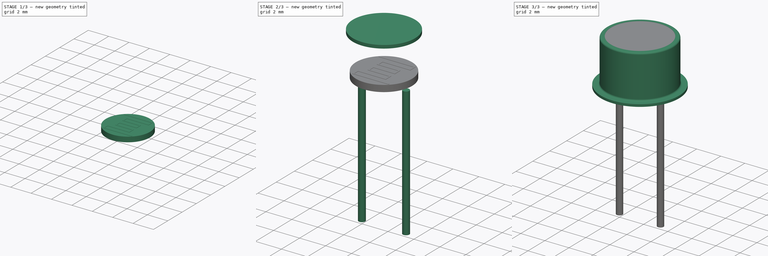
[diagram: build sequence overview — one tinted view per stage of 3, left to right]
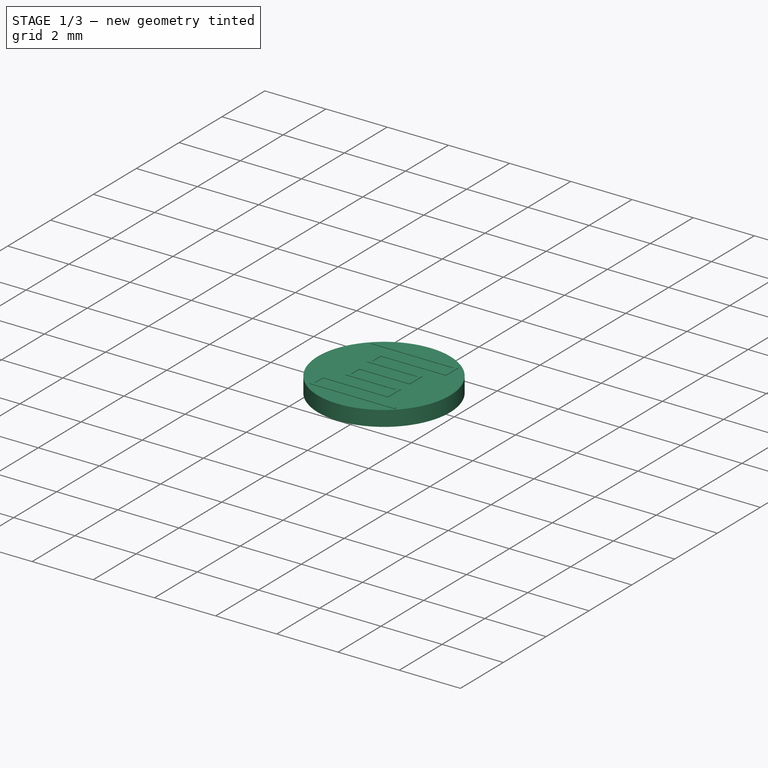
[diagram: stage 1 of 3 — iso view after this stage's code; geometry added in this stage tinted green]
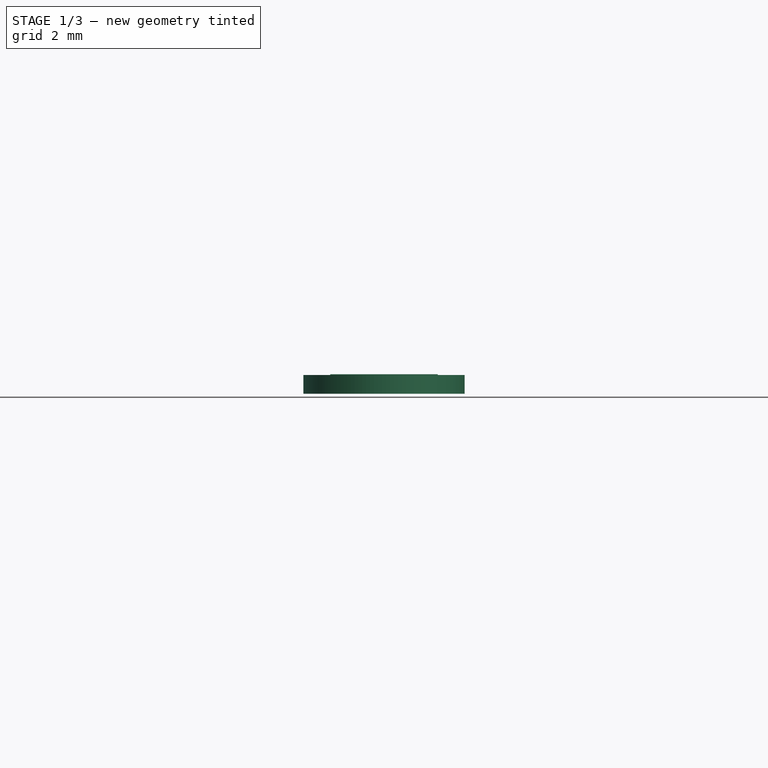
[diagram: stage 1 of 3 — front view after this stage's code; geometry added in this stage tinted green]
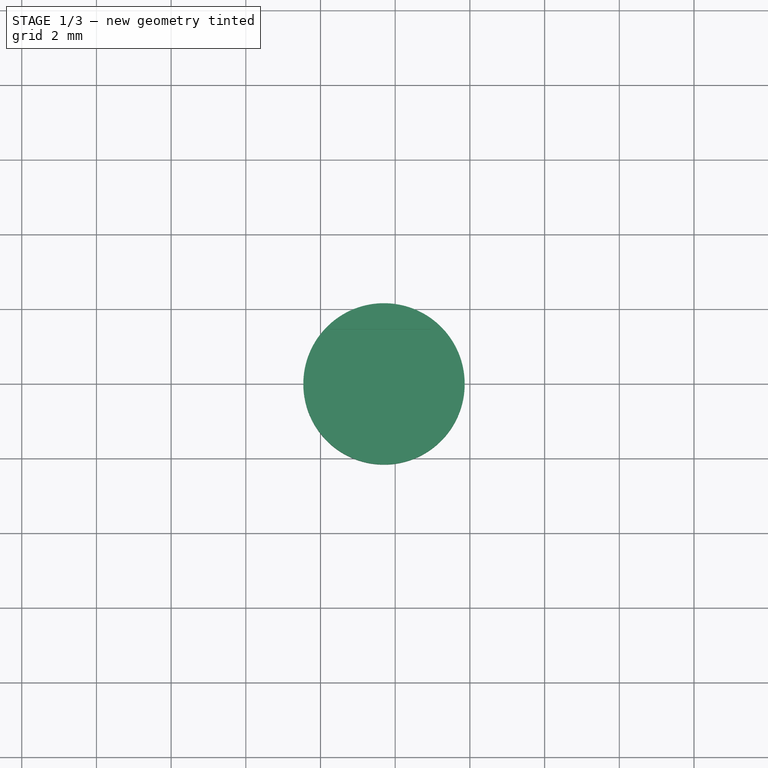
[diagram: stage 1 of 3 — top view after this stage's code; geometry added in this stage tinted green]
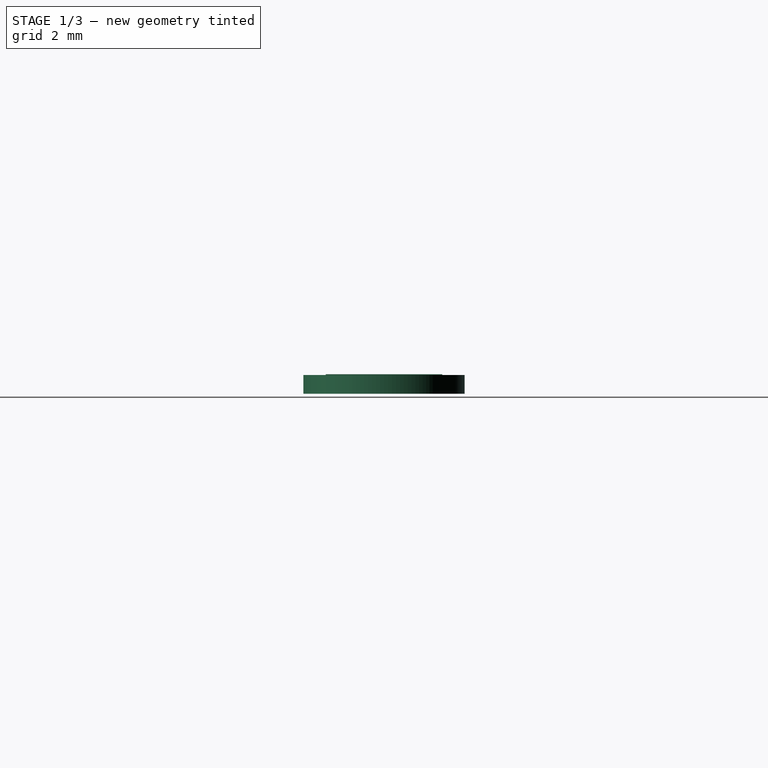
[diagram: stage 1 of 3 — right view after this stage's code; geometry added in this stage tinted green]
FCSTD DOCUMENT  (FreeCAD 0.16R6712 (Git))
Label: R_LDR_D6.4mm_P3.4mm_Vertical
License: All rights reserved
LicenseURL: http://en.wikipedia.org/wiki/All_rights_reserved
objects: Sketcher::SketchObject×5, PartDesign::Pad×3, PartDesign::Revolution×2, Spreadsheet::Sheet×2, Part::MultiFuse×1
note: 16 computed .brp shape members not serialized (recipe doc carries the construction recipe); baked Part::Feature solids carry a one-line shape summary decoded from their .brp

FEATURE [Sketcher::SketchObject] Sketch006
  Placement = pos=(0,0,5.4) rot=(0,0,1;0rad)
  expr: Placement.Base.z = Spreadsheet.pin_upper_length + Spreadsheet.hbottom * 2
  expr: Constraints[2] = Spreadsheet.Dpin / 2
  expr: Constraints[1] = Spreadsheet.DWin / 2 * 0.9
  sketch-geometry (1):
    g0: Circle CenterX=1.7 CenterY=0 CenterZ=0 NormalX=0 NormalY=0 NormalZ=1 Radius=2.16
  constraints (3):
    c: PointOnObject(g0,g-1)
    c: Radius(g0) = 2.16
    c: DistanceX(g-1,g0) = 1.7
FEATURE [PartDesign::Pad] Pad003
  Length = 0.5
  Length2 = 100
  Placement = pos=(0,0,5.4) rot=(0,0,1;0rad)
  Sketch = -> Sketch006
  Type = 0
FEATURE [Sketcher::SketchObject] Sketch002
  Placement = pos=(0,0,5.87) rot=(0,0,1;0rad)
  expr: Constraints[149] = Data.DStructure
  expr: Constraints[186] = Spreadsheet.Dpin / 6
  expr: Constraints[185] = Data.RM * 0.025
  expr: Placement.Base.z = Spreadsheet.pin_upper_length + Spreadsheet.hbottom * 2 + 0.47
  expr: Constraints[8] = Spreadsheet.DWin * 0.65
  expr: Constraints[11] = Spreadsheet.DWin * 0.6
  expr: Constraints[18] = Spreadsheet.Dpin / 2
  expr: Placement.Rotation.Axis.z = Data.Htop
  sketch-geometry (66):
    g0: LineSegment [constr] StartX=0.26 StartY=1.56 StartZ=0 EndX=3.14 EndY=1.56 EndZ=0
    g1: LineSegment [constr] StartX=3.14 StartY=1.56 StartZ=0 EndX=3.14 EndY=-1.56 EndZ=0
    g2: LineSegment [constr] StartX=3.14 StartY=-1.56 StartZ=0 EndX=0.26 EndY=-1.56 EndZ=0
    g3: LineSegment [constr] StartX=0.26 StartY=-1.56 StartZ=0 EndX=0.26 EndY=1.56 EndZ=0
    g4: GeomPoint [constr] X=0.26 Y=0 Z=0
    g5: LineSegment [constr] StartX=0.26 StartY=0 StartZ=0 EndX=3.14 EndY=0 EndZ=0
    g6: LineSegment [constr] StartX=0 StartY=0 StartZ=0 EndX=1.7 EndY=0 EndZ=0
    g7: LineSegment StartX=0.26 StartY=1.46 StartZ=0 EndX=2.955 EndY=1.46 EndZ=0
    g8: LineSegment StartX=3.055 StartY=1.46 StartZ=0 EndX=3.055 EndY=1.56 EndZ=0
    g9: LineSegment StartX=3.055 StartY=1.56 StartZ=0 EndX=0.26 EndY=1.56 EndZ=0
    g10: LineSegment StartX=0.26 StartY=1.56 StartZ=0 EndX=0.26 EndY=1.46 EndZ=0
    g11: LineSegment [constr] StartX=2.955 StartY=1.46 StartZ=0 EndX=3.055 EndY=1.46 EndZ=0
    g12: LineSegment StartX=3.055 StartY=1.46 StartZ=0 EndX=3.055 EndY=0.956667 EndZ=0
    g13: LineSegment StartX=3.055 StartY=0.956667 StartZ=0 EndX=2.955 EndY=0.956667 EndZ=0
    g14: LineSegment StartX=2.955 StartY=1.05667 StartZ=0 EndX=2.955 EndY=1.46 EndZ=0
    g15: LineSegment StartX=2.955 StartY=1.05667 StartZ=0 EndX=0.826667 EndY=1.05667 EndZ=0
    g16: LineSegment StartX=0.826667 StartY=1.05667 StartZ=0 EndX=0.826667 EndY=0.956667 EndZ=0
    g17: LineSegment StartX=0.926667 StartY=0.956667 StartZ=0 EndX=2.955 EndY=0.956667 EndZ=0
    g18: LineSegment [constr] StartX=2.955 StartY=0.956667 StartZ=0 EndX=2.955 EndY=1.05667 EndZ=0
    g19: LineSegment [constr] StartX=0.926667 StartY=0.956667 StartZ=0 EndX=0.826667 EndY=0.956667 EndZ=0
    g20: LineSegment StartX=0.826667 StartY=0.956667 StartZ=0 EndX=0.826667 EndY=0.453333 EndZ=0
    g21: LineSegment StartX=0.826667 StartY=0.453333 StartZ=0 EndX=0.926667 EndY=0.453333 EndZ=0
    g22: LineSegment StartX=0.926667 StartY=0.553333 StartZ=0 EndX=0.926667 EndY=0.956667 EndZ=0
    g23: LineSegment StartX=0.926667 StartY=0.553333 StartZ=0 EndX=2.57333 EndY=0.553333 EndZ=0
    g24: LineSegment StartX=2.57333 StartY=0.553333 StartZ=0 EndX=2.57333 EndY=0.453333 EndZ=0
    g25: LineSegment StartX=2.47333 StartY=0.453333 StartZ=0 EndX=0.926667 EndY=0.453333 EndZ=0
    g26: LineSegment [constr] StartX=0.926667 StartY=0.453333 StartZ=0 EndX=0.926667 EndY=0.553333 EndZ=0
    g27: LineSegment [constr] StartX=2.47333 StartY=0.453333 StartZ=0 EndX=2.57333 EndY=0.453333 EndZ=0
    g28: LineSegment StartX=2.57333 StartY=0.453333 StartZ=0 EndX=2.57333 EndY=-0.05 EndZ=0
    g29: LineSegment StartX=2.57333 StartY=-0.05 StartZ=0 EndX=2.47333 EndY=-0.05 EndZ=0
    g30: LineSegment StartX=2.47333 StartY=0.05 StartZ=0 EndX=0.826667 EndY=0.05 EndZ=0
    g31: LineSegment StartX=0.826667 StartY=0.05 StartZ=0 EndX=0.826667 EndY=-0.05 EndZ=0
    g32: LineSegment StartX=0.926667 StartY=-0.05 StartZ=0 EndX=2.47333 EndY=-0.05 EndZ=0
    g33: LineSegment [constr] StartX=2.47333 StartY=-0.05 StartZ=0 EndX=2.47333 EndY=0.05 EndZ=0
    g34: LineSegment [constr] StartX=0.926667 StartY=-0.05 StartZ=0 EndX=0.826667 EndY=-0.05 EndZ=0
    g35: LineSegment StartX=0.826667 StartY=-0.05 StartZ=0 EndX=0.826667 EndY=-0.553333 EndZ=0
    g36: LineSegment StartX=0.826667 StartY=-0.553333 StartZ=0 EndX=0.926667 EndY=-0.553333 EndZ=0
    g37: LineSegment StartX=0.926667 StartY=-0.453333 StartZ=0 EndX=0.926667 EndY=-0.05 EndZ=0
    g38: LineSegment StartX=0.926667 StartY=-0.453333 StartZ=0 EndX=2.57333 EndY=-0.453333 EndZ=0
    g39: LineSegment StartX=2.57333 StartY=-0.453333 StartZ=0 EndX=2.57333 EndY=-0.553333 EndZ=0
    g40: LineSegment StartX=2.47333 StartY=-0.553333 StartZ=0 EndX=0.926667 EndY=-0.553333 EndZ=0
    g41: LineSegment [constr] StartX=0.926667 StartY=-0.553333 StartZ=0 EndX=0.926667 EndY=-0.453333 EndZ=0
    g42: LineSegment [constr] StartX=2.47333 StartY=-0.553333 StartZ=0 EndX=2.57333 EndY=-0.553333 EndZ=0
    g43: LineSegment StartX=2.57333 StartY=-0.553333 StartZ=0 EndX=2.57333 EndY=-1.05667 EndZ=0
    g44: LineSegment StartX=2.57333 StartY=-1.05667 StartZ=0 EndX=2.47333 EndY=-1.05667 EndZ=0
    g45: LineSegment StartX=2.47333 StartY=-0.956667 StartZ=0 EndX=2.47333 EndY=-0.553333 EndZ=0
    g46: LineSegment StartX=2.47333 StartY=-0.956667 StartZ=0 EndX=0.345 EndY=-0.956667 EndZ=0
    g47: LineSegment StartX=0.345 StartY=-0.956667 StartZ=0 EndX=0.345 EndY=-1.05667 EndZ=0
    g48: LineSegment StartX=0.445 StartY=-1.05667 StartZ=0 EndX=2.47333 EndY=-1.05667 EndZ=0
    g49: LineSegment [constr] StartX=2.47333 StartY=-1.05667 StartZ=0 EndX=2.47333 EndY=-0.956667 EndZ=0
    g50: LineSegment [constr] StartX=0.445 StartY=-1.05667 StartZ=0 EndX=0.345 EndY=-1.05667 EndZ=0
    g51: LineSegment StartX=0.345 StartY=-1.05667 StartZ=0 EndX=0.345 EndY=-1.56 EndZ=0
    g52: LineSegment StartX=0.345 StartY=-1.56 StartZ=0 EndX=0.445 EndY=-1.56 EndZ=0
    g53: LineSegment StartX=0.445 StartY=-1.46 StartZ=0 EndX=0.445 EndY=-1.05667 EndZ=0
    g54: LineSegment StartX=0.445 StartY=-1.46 StartZ=0 EndX=3.14 EndY=-1.46 EndZ=0
    g55: LineSegment StartX=3.14 StartY=-1.46 StartZ=0 EndX=3.14 EndY=-1.56 EndZ=0
    g56: LineSegment StartX=3.14 StartY=-1.56 StartZ=0 EndX=0.445 EndY=-1.56 EndZ=0
    g57: LineSegment [constr] StartX=0.445 StartY=-1.56 StartZ=0 EndX=0.445 EndY=-1.46 EndZ=0
    g58: LineSegment [constr] StartX=0.345 StartY=-0.956667 StartZ=0 EndX=0.26 EndY=-0.956667 EndZ=0
    g59: LineSegment [constr] StartX=3.055 StartY=0.956667 StartZ=0 EndX=3.14 EndY=0.956667 EndZ=0
    g60: LineSegment [constr] StartX=0.826667 StartY=0.453333 StartZ=0 EndX=0.826667 EndY=0.05 EndZ=0
    g61: LineSegment StartX=2.47333 StartY=0.453333 StartZ=0 EndX=2.47333 EndY=0.05 EndZ=0
    g62: GeomPoint [constr] X=2.47333 Y=0 Z=0
    g63: LineSegment [constr] StartX=0.826667 StartY=1.05667 StartZ=0 EndX=0.26 EndY=1.05667 EndZ=0
    g64: LineSegment [constr] StartX=2.57333 StartY=-1.05667 StartZ=0 EndX=3.14 EndY=-1.05667 EndZ=0
    g65: LineSegment [constr] StartX=2.57333 StartY=-0.05 StartZ=0 EndX=2.57333 EndY=-0.453333 EndZ=0
  constraints (190):
    c: Coincident(g0,g1)
    c: Coincident(g1,g2)
    c: Coincident(g2,g3)
    c: Coincident(g3,g0)
    c: Horizontal(g0)
    c: Horizontal(g2)
    c: Vertical(g1)
    c: Vertical(g3)
    c: DistanceY(g1,g1) = 3.12
    c: PointOnObject(g4,g-1)
    c: Symmetric(g3,g3,g4)
    c: DistanceX(g0,g0) = 2.88
    c: Coincident(g5,g4)
    c: PointOnObject(g5,g1)
    c: Horizontal(g5)
    c: Coincident(g6,g-1)
    c: PointOnObject(g6,g5)
    c: Symmetric(g5,g5,g6)
    c: DistanceX(g6,g6) = 1.7
    c: Coincident(g8,g9)
    c: Coincident(g9,g10)
    c: Coincident(g10,g7)
    c: Horizontal(g7)
    c: Horizontal(g9)
    c: Vertical(g8)
    c: Vertical(g10)
    c: PointOnObject(g10,g3)
    c: PointOnObject(g8,g0)
    c: Coincident(g11,g12)
    c: Coincident(g12,g13)
    c: Coincident(g14,g11)
    c: Horizontal(g11)
    c: Horizontal(g13)
    c: Vertical(g12)
    c: Vertical(g14)
    c: PointOnObject(g11,g7)
    c: Coincident(g15,g16)
    c: Coincident(g17,g18)
    c: Horizontal(g15)
    c: Horizontal(g17)
    c: Vertical(g16)
    c: Vertical(g18)
    c: PointOnObject(g18,g14)
    c: Coincident(g19,g20)
    c: Coincident(g20,g21)
    c: Coincident(g22,g19)
    c: Horizontal(g19)
    c: Horizontal(g21)
    c: Vertical(g20)
    c: Vertical(g22)
    c: PointOnObject(g19,g17)
    c: Coincident(g23,g24)
    c: Coincident(g25,g26)
    c: Horizontal(g23)
    c: Horizontal(g25)
    c: Vertical(g24)
    c: Vertical(g26)
    c: PointOnObject(g26,g22)
    c: Coincident(g27,g28)
    c: Coincident(g28,g29)
    c: Horizontal(g27)
    c: Horizontal(g29)
    c: Vertical(g28)
    c: PointOnObject(g27,g25)
    c: Coincident(g30,g31)
    c: Coincident(g32,g33)
    c: Coincident(g33,g30)
    c: Horizontal(g30)
    c: Horizontal(g32)
    c: Vertical(g31)
    c: Vertical(g33)
    c: Coincident(g34,g35)
    c: Coincident(g35,g36)
    c: Coincident(g37,g34)
    c: Horizontal(g34)
    c: Horizontal(g36)
    c: Vertical(g35)
    c: Vertical(g37)
    c: PointOnObject(g34,g32)
    c: Coincident(g38,g39)
    c: Coincident(g40,g41)
    c: Horizontal(g38)
    c: Horizontal(g40)
    c: Vertical(g39)
    c: Vertical(g41)
    c: PointOnObject(g41,g37)
    c: Coincident(g43,g44)
    c: Coincident(g45,g42)
    c: Horizontal(g42)
    c: Horizontal(g44)
    c: Vertical(g43)
    c: Vertical(g45)
    c: PointOnObject(g42,g40)
    c: Coincident(g46,g47)
    c: Coincident(g48,g49)
    c: Horizontal(g46)
    c: Horizontal(g48)
    c: Vertical(g47)
    c: Vertical(g49)
    c: PointOnObject(g49,g45)
    c: Coincident(g50,g51)
    c: Coincident(g51,g52)
    c: Coincident(g53,g50)
    c: Horizontal(g50)
    c: Horizontal(g52)
    c: Vertical(g51)
    c: Vertical(g53)
    c: PointOnObject(g50,g48)
    c: Coincident(g54,g55)
    c: Coincident(g55,g56)
    c: Coincident(g56,g57)
    c: Horizontal(g54)
    c: Horizontal(g56)
    c: Vertical(g55)
    c: Vertical(g57)
    c: Coincident(g52,g56)
    c: Coincident(g44,g48)
    c: Coincident(g47,g50)
    c: Coincident(g36,g40)
    c: Coincident(g31,g34)
    c: Coincident(g29,g32)
    c: Coincident(g24,g27)
    c: Coincident(g21,g25)
    c: Coincident(g16,g19)
    c: Coincident(g13,g17)
    c: Coincident(g8,g11)
    c: PointOnObject(g7,g14)
    c: Coincident(g14,g15)
    c: PointOnObject(g17,g22)
    c: Coincident(g22,g23)
    c: PointOnObject(g32,g37)
    c: Coincident(g37,g38)
    c: PointOnObject(g40,g45)
    c: Coincident(g45,g46)
    c: PointOnObject(g48,g53)
    c: Coincident(g53,g54)
    c: Equal(g11,g18)
    c: Equal(g18,g19)
    c: Equal(g19,g26)
    c: Equal(g26,g27)
    c: Equal(g27,g33)
    c: Equal(g33,g34)
    c: Equal(g34,g41)
    c: Equal(g41,g42)
    c: Equal(g42,g49)
    c: Equal(g49,g50)
    c: Equal(g50,g57)
    c: Equal(g57,g52)
    c: Equal(g52,g8)
    c: DistanceY(g8,g8) = 0.1
    c: Coincident(g55,g1)
    c: Coincident(g57,g53)
    c: Coincident(g58,g46)
    c: PointOnObject(g58,g3)
    c: Horizontal(g58)
    c: Coincident(g59,g12)
    c: Horizontal(g59)
    c: Equal(g59,g58)
    c: Coincident(g60,g20)
    c: Coincident(g60,g30)
    c: Vertical(g60)
    c: Coincident(g39,g42)
    c: Coincident(g39,g43)
    c: Coincident(g61,g25)
    c: Coincident(g61,g30)
    c: Vertical(g61)
    c: PointOnObject(g62,g5)
    c: Symmetric(g33,g33,g62)
    c: Coincident(g27,g25)
    c: Coincident(g63,g15)
    c: PointOnObject(g63,g3)
    c: Horizontal(g63)
    c: Coincident(g64,g43)
    c: PointOnObject(g64,g1)
    c: Horizontal(g64)
    c: Coincident(g65,g28)
    c: Coincident(g65,g38)
    c: Vertical(g65)
    c: Equal(g64,g63)
    c: Equal(g37,g45)
    c: Equal(g45,g61)
    c: Equal(g61,g53)
    c: Equal(g53,g22)
    c: Equal(g22,g14)
    c: PointOnObject(g59,g1)
    c: DistanceX(g59,g59) = 0.085
    c: DistanceX(g63,g63) = 0.566667
    c: Coincident(g49,g45)
    c: Coincident(g41,g37)
    c: Coincident(g22,g26)
FEATURE [PartDesign::Pad] Pad002
  Length = 0.05
  Length2 = 100
  Placement = pos=(0,0,5.87) rot=(0,0,1;0rad)
  Sketch = -> Sketch002
  Type = 0
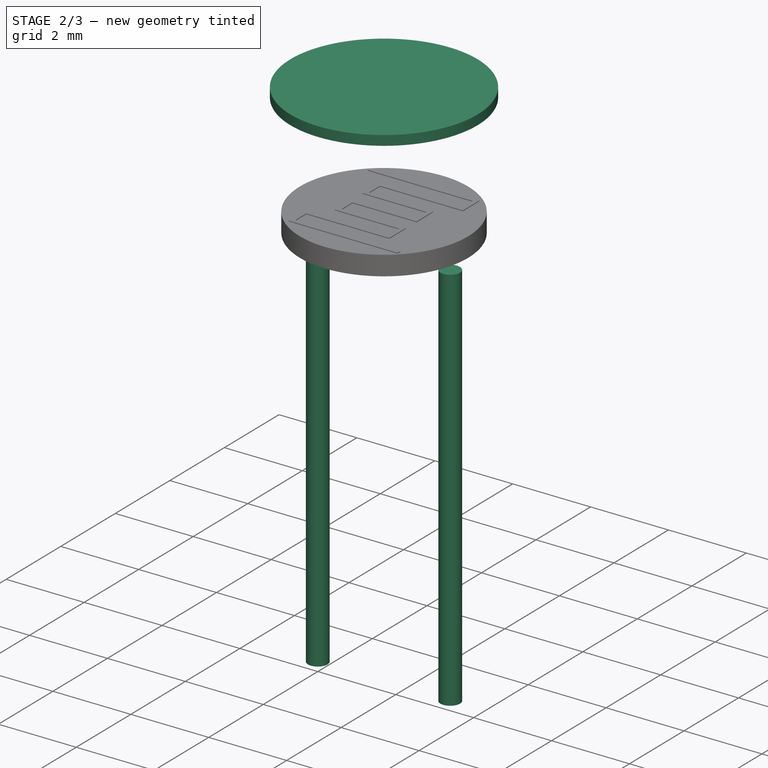
[diagram: stage 2 of 3 — iso view after this stage's code; geometry added in this stage tinted green]
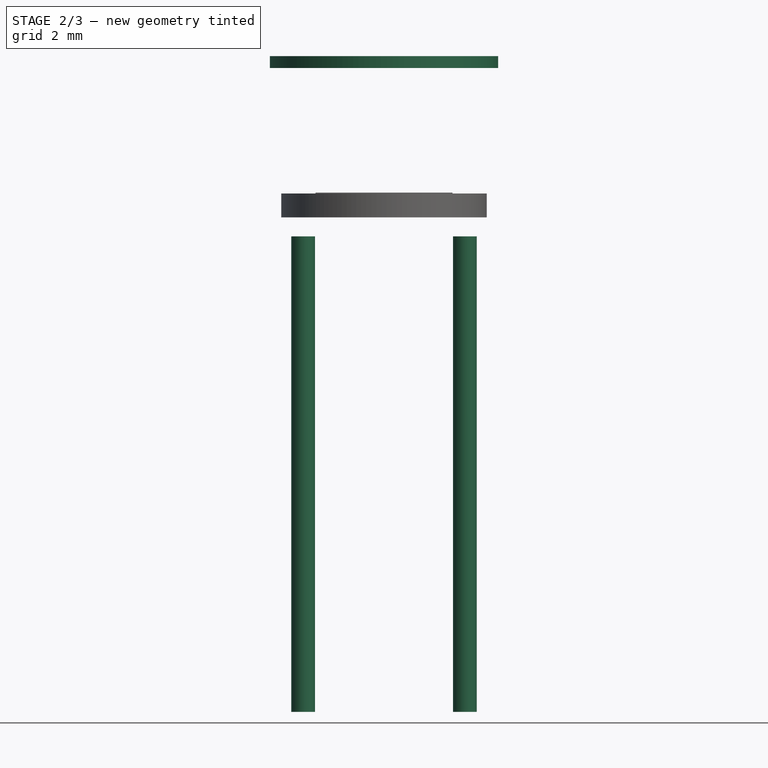
[diagram: stage 2 of 3 — front view after this stage's code; geometry added in this stage tinted green]
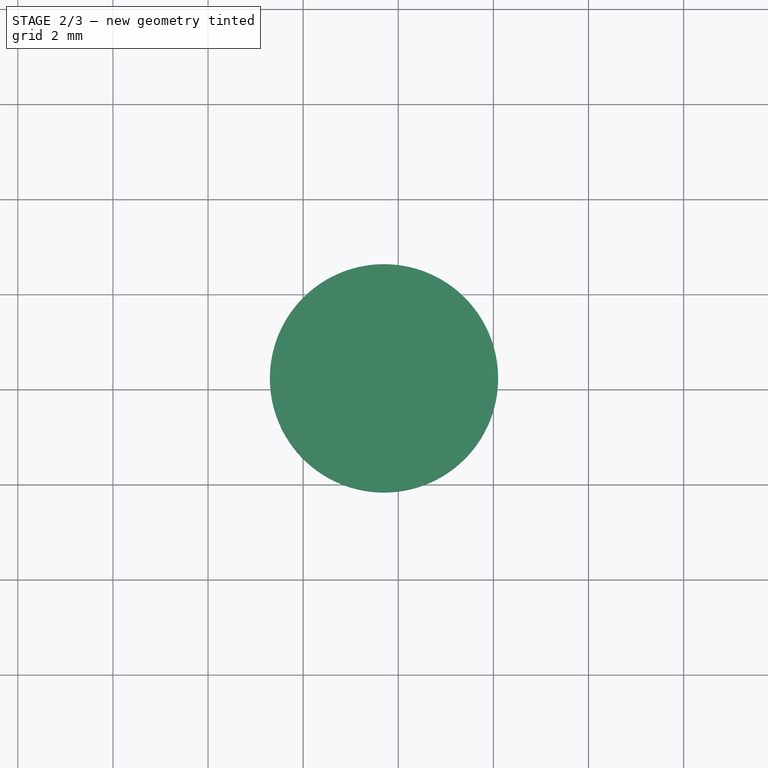
[diagram: stage 2 of 3 — top view after this stage's code; geometry added in this stage tinted green]
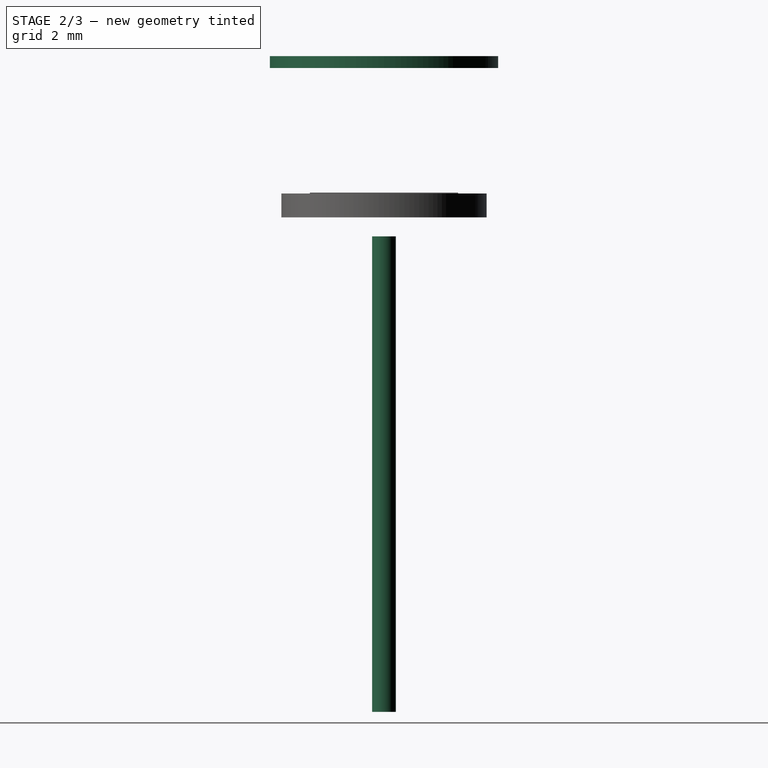
[diagram: stage 2 of 3 — right view after this stage's code; geometry added in this stage tinted green]
FEATURE [Spreadsheet::Sheet] Spreadsheet  label="dims"
  cells = A1=bottom diameter; B1(DBot)=6.5; A2=top diameter; B2(DTop)=5.5; A3=pin diameter; B3(Dpin)=3.4; A4=height; B4(height)=3.8; A5=nible; B5(nibble_w)=0.86; C5(nibble_l)=1; A6=pin diameter; B6(pin_diameter)=0.5; A7=pin length; B7(pin_length)=8; A8=pin upper length; B8(pin_upper_length)=5; A9=diameter window; B9(DWin)=4.8; A10=hbottom; B10(hbottom)=0.2
FEATURE [Sketcher::SketchObject] Sketch005
  Placement = pos=(0,0,0) rot=(1,0,0;1.5708rad)
  expr: Constraints[13] = Spreadsheet.height + Spreadsheet.pin_upper_length - 0.01
  expr: Constraints[11] = dims.DWin / 2
  expr: Constraints[1] = dims.Dpin / 2
  sketch-geometry (5):
    g0: LineSegment [constr] StartX=1.7 StartY=7.55084 StartZ=0 EndX=1.7 EndY=16.6002 EndZ=0
    g1: LineSegment StartX=1.7 StartY=8.79 StartZ=0 EndX=-0.7 EndY=8.79 EndZ=0
    g2: LineSegment StartX=-0.7 StartY=8.79 StartZ=0 EndX=-0.7 EndY=8.54 EndZ=0
    g3: LineSegment StartX=-0.7 StartY=8.54 StartZ=0 EndX=1.7 EndY=8.54 EndZ=0
    g4: LineSegment StartX=1.7 StartY=8.54 StartZ=0 EndX=1.7 EndY=8.79 EndZ=0
  constraints (14):
    c: Vertical(g0)
    c: DistanceX(g-1,g0) = 1.7
    c: Coincident(g1,g2)
    c: Coincident(g2,g3)
    c: Coincident(g3,g4)
    c: Coincident(g4,g1)
    c: Horizontal(g1)
    c: Horizontal(g3)
    c: Vertical(g2)
    c: Vertical(g4)
    c: PointOnObject(g1,g0)
    c: DistanceX(g1,g1) = 2.4
    c: DistanceY(g2,g2) = 0.25
    c: DistanceY(g-1,g1) = 8.79
FEATURE [PartDesign::Revolution] Revolution001
  Angle = 360
  Axis = (0,0,9.04933)
  Base = (1.7,0,7.55084)
  Placement = pos=(0,0,0) rot=(1,0,0;1.5708rad)
  ReferenceAxis = -> Sketch005 [Axis0]
  Sketch = -> Sketch005
FEATURE [PartDesign::Pad] Pad
  Length = 10
  Length2 = 100
  Placement = pos=(0,0,5) rot=(0,0,1;0rad)
  Reversed = true
  Sketch = -> Sketch
  Type = 0
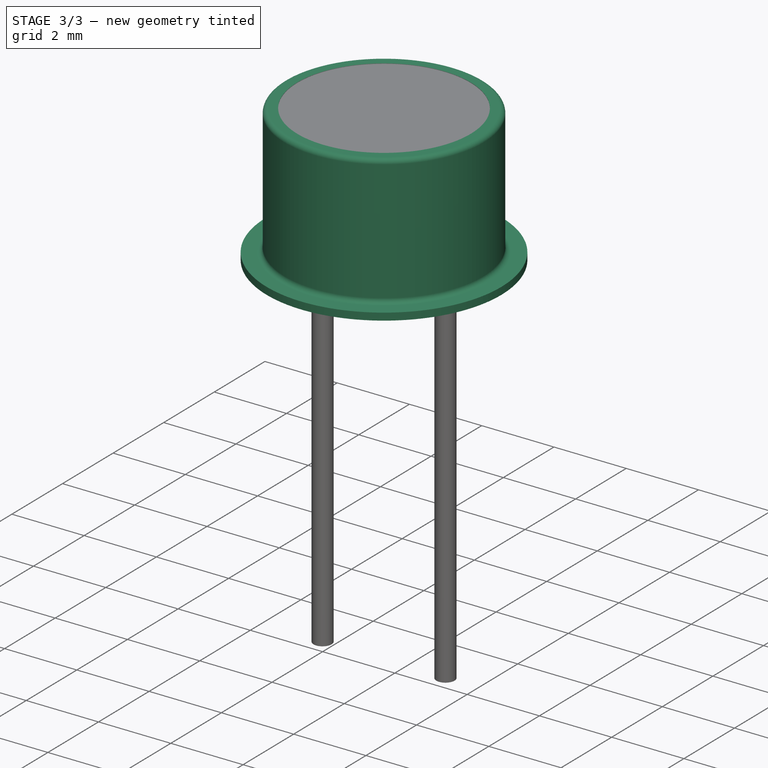
[diagram: stage 3 of 3 — iso view after this stage's code; geometry added in this stage tinted green]
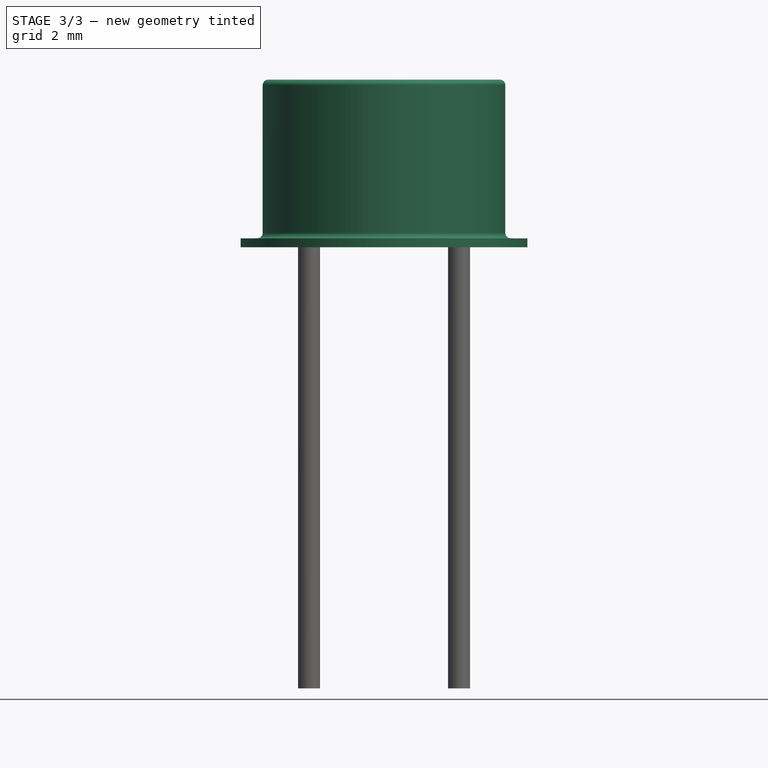
[diagram: stage 3 of 3 — front view after this stage's code; geometry added in this stage tinted green]
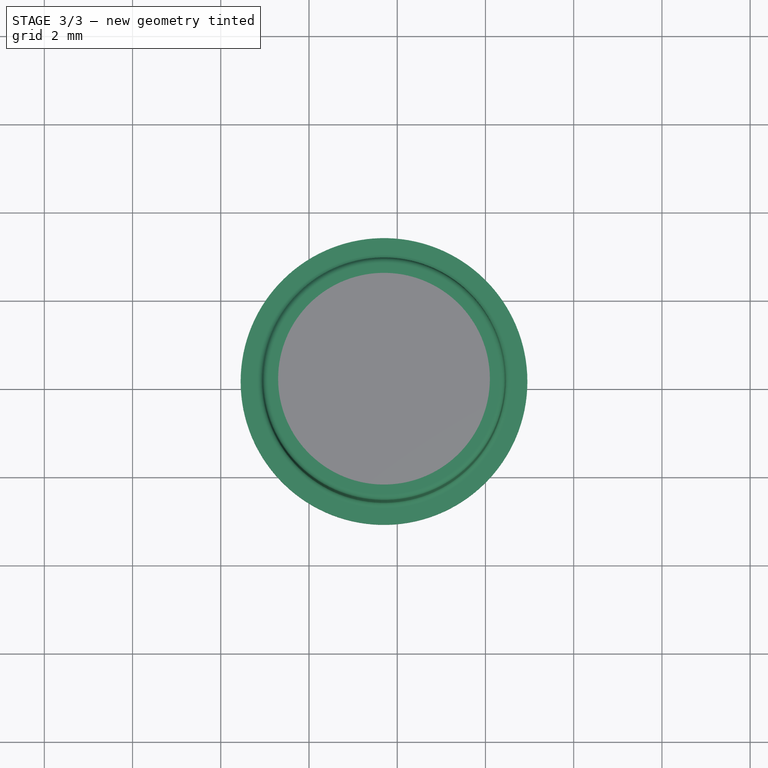
[diagram: stage 3 of 3 — top view after this stage's code; geometry added in this stage tinted green]
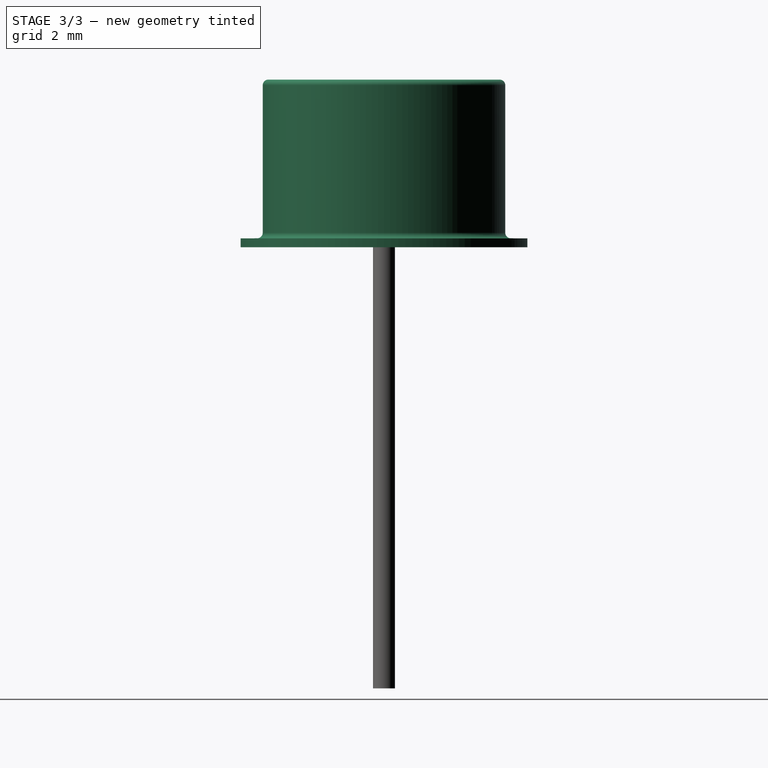
[diagram: stage 3 of 3 — right view after this stage's code; geometry added in this stage tinted green]
FEATURE [Sketcher::SketchObject] Sketch
  Placement = pos=(0,0,5) rot=(0,0,1;0rad)
  expr: Constraints[4] = Spreadsheet.Dpin
  expr: Constraints[1] = Spreadsheet.pin_diameter / 2
  sketch-geometry (2):
    g0: Circle CenterX=0 CenterY=0 CenterZ=0 NormalX=0 NormalY=0 NormalZ=1 Radius=0.25
    g1: Circle CenterX=3.4 CenterY=0 CenterZ=0 NormalX=0 NormalY=0 NormalZ=1 Radius=0.25
  constraints (5):
    c: Coincident(g0,g-1)
    c: Radius(g0) = 0.25
    c: Equal(g1,g0)
    c: PointOnObject(g1,g-1)
    c: DistanceX(g-1,g1) = 3.4
FEATURE [Sketcher::SketchObject] Sketch003
  Placement = pos=(0,0,0) rot=(1,0,0;1.5708rad)
  expr: Constraints[27] = Spreadsheet.hbottom * 2
  expr: Constraints[7] = Spreadsheet.hbottom
  expr: Constraints[26] = Spreadsheet.height
  expr: Constraints[14] = Spreadsheet.DTop / 2
  expr: Constraints[28] = Spreadsheet.DWin / 2
  expr: Constraints[8] = Spreadsheet.DBot / 2
  expr: Constraints[1] = Spreadsheet.Dpin / 2
  expr: Constraints[3] = Spreadsheet.pin_upper_length
  sketch-geometry (12):
    g0: LineSegment [constr] StartX=1.7 StartY=2.55067 StartZ=0 EndX=1.7 EndY=11.6 EndZ=0
    g1: LineSegment StartX=1.7 StartY=5 StartZ=0 EndX=-1.55 EndY=5 EndZ=0
    g2: LineSegment StartX=-1.55 StartY=5 StartZ=0 EndX=-1.55 EndY=5.2 EndZ=0
    g3: LineSegment StartX=1.7 StartY=11.6 StartZ=0 EndX=1.7 EndY=5 EndZ=0
    g4: LineSegment StartX=-1.55 StartY=5.2 StartZ=0 EndX=-1.17571 EndY=5.20299 EndZ=0
    g5: LineSegment StartX=-1.05 StartY=5.3297 StartZ=0 EndX=-1.05 EndY=8.67328 EndZ=0
    g6: ArcOfCircle CenterX=-0.923282 CenterY=8.67328 CenterZ=0 NormalX=0 NormalY=0 NormalZ=1 Radius=0.126718 StartAngle=1.57148 EndAngle=3.14159
    g7: ArcOfCircle CenterX=-1.17672 CenterY=5.3297 CenterZ=0 NormalX=0 NormalY=0 NormalZ=1 Radius=0.126718 StartAngle=4.72038 EndAngle=6.28319
    g8: LineSegment StartX=-0.923369 StartY=8.8 StartZ=0 EndX=-0.7 EndY=8.8 EndZ=0
    g9: LineSegment StartX=-0.7 StartY=8.8 StartZ=0 EndX=-0.7 EndY=5.4 EndZ=0
    g10: LineSegment StartX=-0.7 StartY=5.4 StartZ=0 EndX=1.7 EndY=5.4 EndZ=0
    g11: LineSegment StartX=1.7 StartY=5.4 StartZ=0 EndX=1.7 EndY=5 EndZ=0
  constraints (30):
    c: Vertical(g0)
    c: DistanceX(g-1,g0) = 1.7
    c: Horizontal(g1)
    c: DistanceY(g-1,g1) = 5
    c: Coincident(g2,g1)
    c: Vertical(g2)
    c: Coincident(g3,g1)
    c: DistanceY(g2,g2) = 0.2
    c: DistanceX(g1,g1) = 3.25
    c: Coincident(g4,g2)
    c: Vertical(g5)
    c: Tangent(g5,g6) = 1.5708
    c: Tangent(g4,g7) = -1.5708
    c: Tangent(g5,g7) = -1.5708
    c: DistanceX(g5,g0) = 2.75
    c: Vertical(g3)
    c: Coincident(g0,g3)
    c: Coincident(g8,g6)
    c: Horizontal(g8)
    c: Coincident(g9,g8)
    c: Vertical(g9)
    c: Coincident(g10,g9)
    c: PointOnObject(g10,g0)
    c: Horizontal(g10)
    c: Coincident(g11,g10)
    c: Coincident(g11,g1)
    c: DistanceY(g1,g8) = 3.8
    c: DistanceY(g1,g9) = 0.4
    c: DistanceX(g8,g0) = 2.4
    c: Equal(g7,g6)
FEATURE [PartDesign::Revolution] Revolution
  Angle = 360
  Axis = (0,0,9.04933)
  Base = (1.7,0,2.55067)
  Placement = pos=(0,0,0) rot=(1,0,0;1.5708rad)
  ReferenceAxis = -> Sketch003 [Axis0]
  Sketch = -> Sketch003
FEATURE [Spreadsheet::Sheet] Spreadsheet001  label="Data"
  cells = A1=W; B1(Wid)=5.1; A2=H; B2(H)=4.3; A3=D; B3(D)=1.5; A4=Dwire; B4(DWire)=0.5; A5=RM; B5(RM)=3.4; A6=Htop; B6(Htop)=4; A7=Hbottom; B7(Hbottom)=3; A8=DOuter; B8(DOuter)=5.1; A9=DStructure; B9(DStructure)=0.1
FEATURE [Part::MultiFuse] Pad002_mp_cp  label="R_LDR_D6.4mm_P3.4mm_Vertical"
  Shapes = -> [Pad002,Pad003,Pad,Revolution001,Revolution]
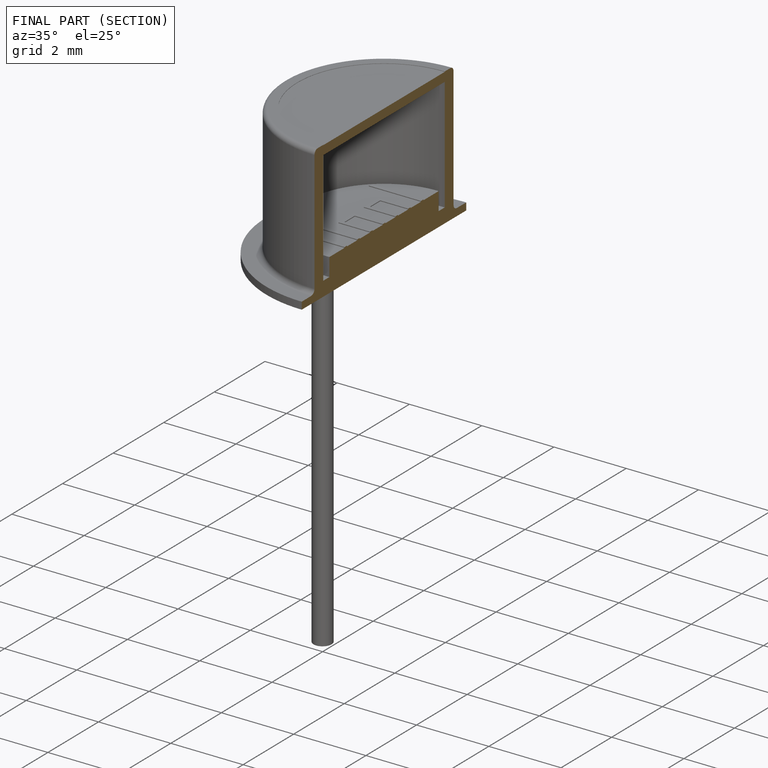
[diagram: finished part — half-section view (interior)]
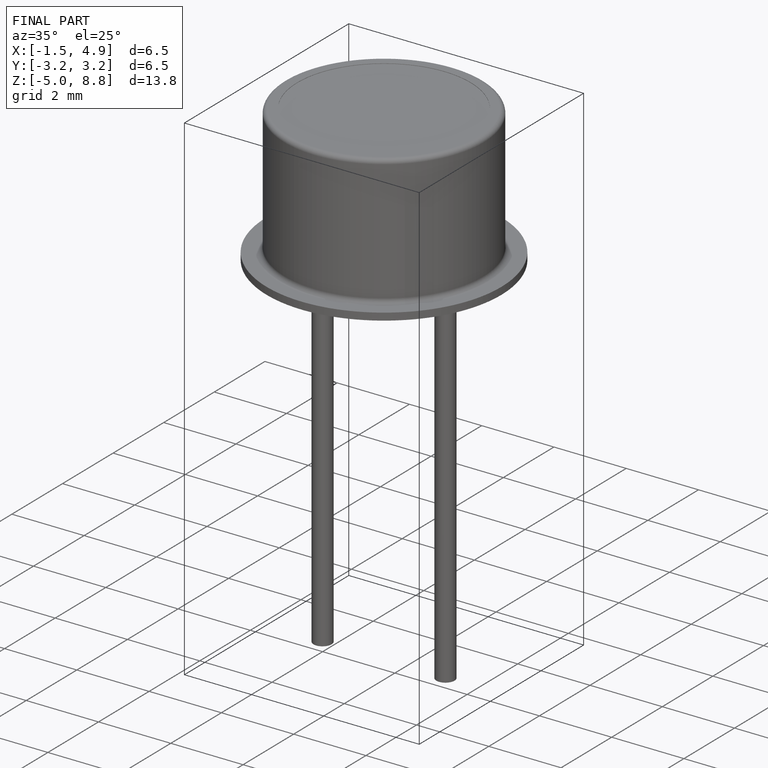
[diagram: finished part — iso view with bounding-box wireframe]
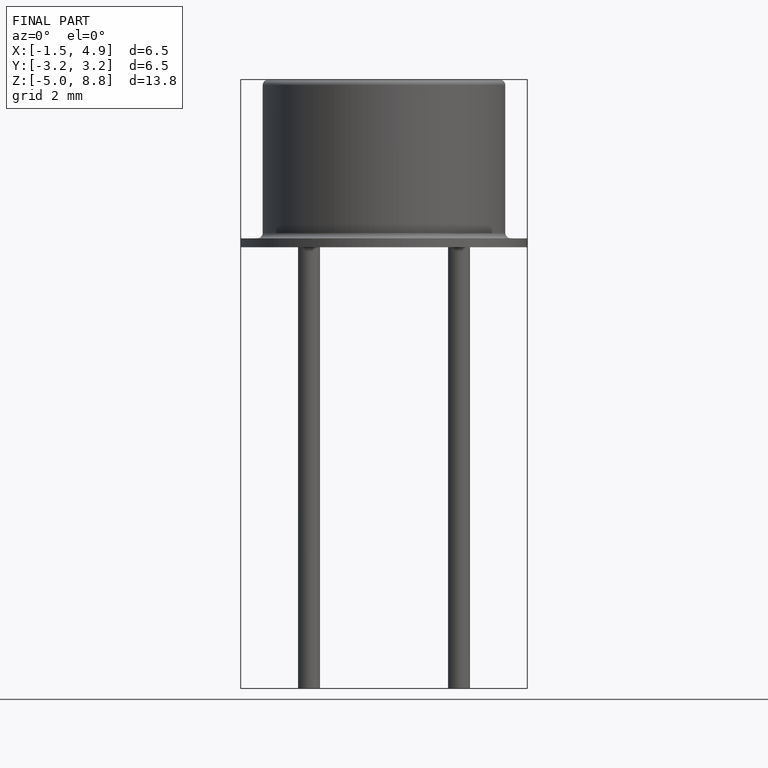
[diagram: finished part — front view with bounding-box wireframe]
